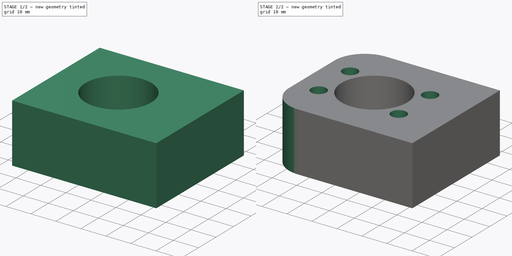
[diagram: build sequence overview — one tinted view per stage of 2, left to right]
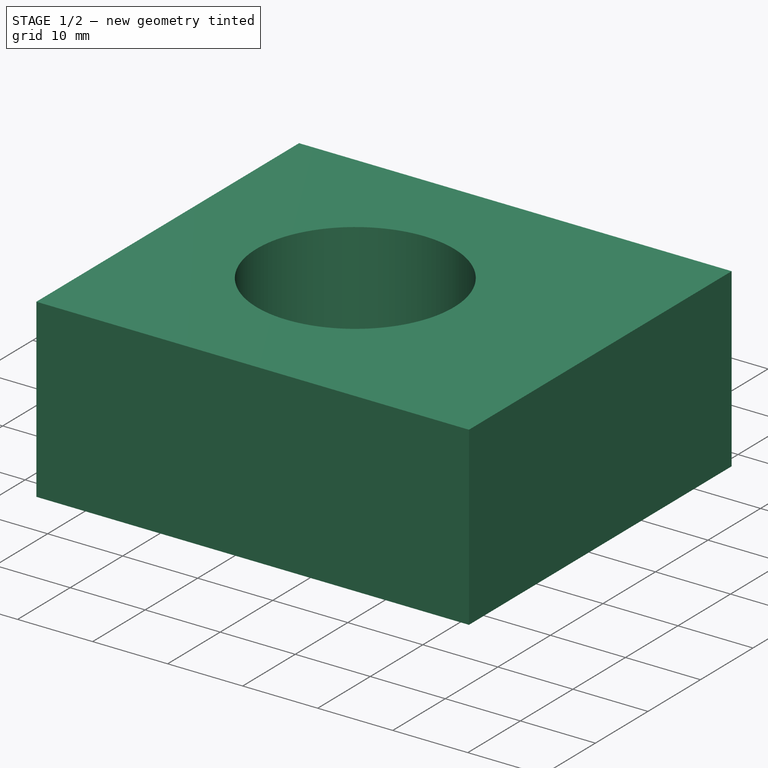
[diagram: stage 1 of 2 — iso view after this stage's code; geometry added in this stage tinted green]
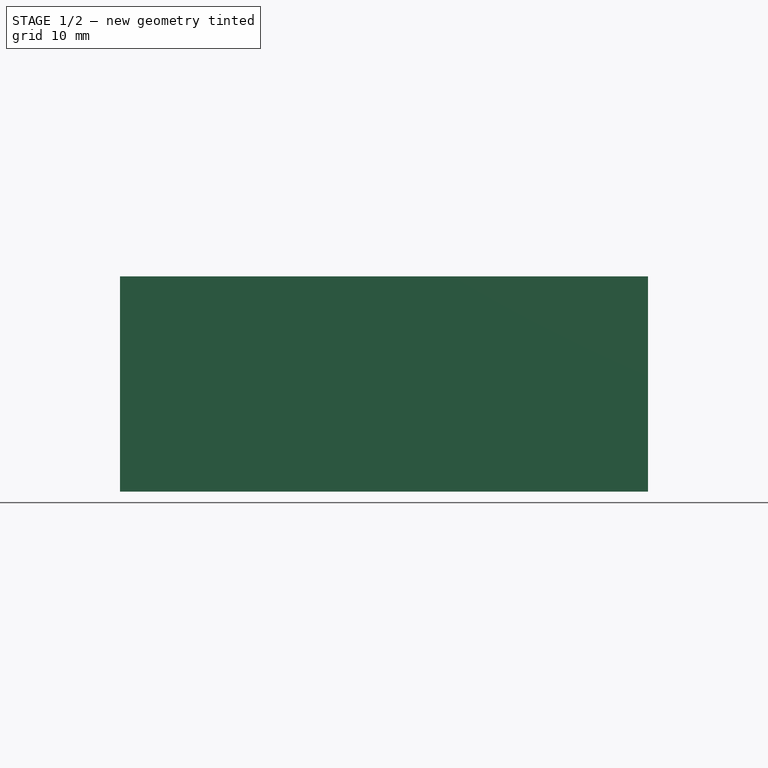
[diagram: stage 1 of 2 — front view after this stage's code; geometry added in this stage tinted green]
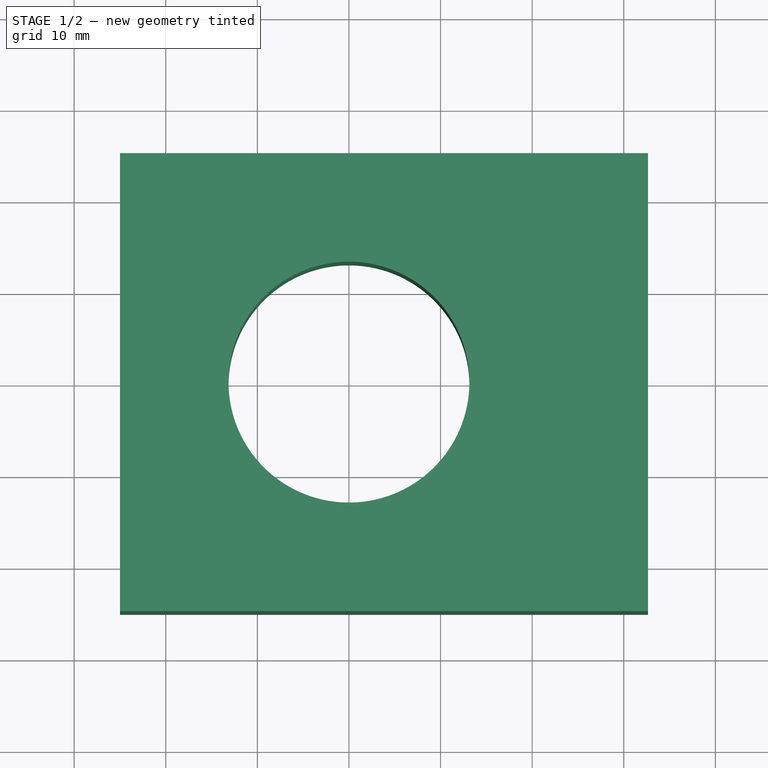
[diagram: stage 1 of 2 — top view after this stage's code; geometry added in this stage tinted green]
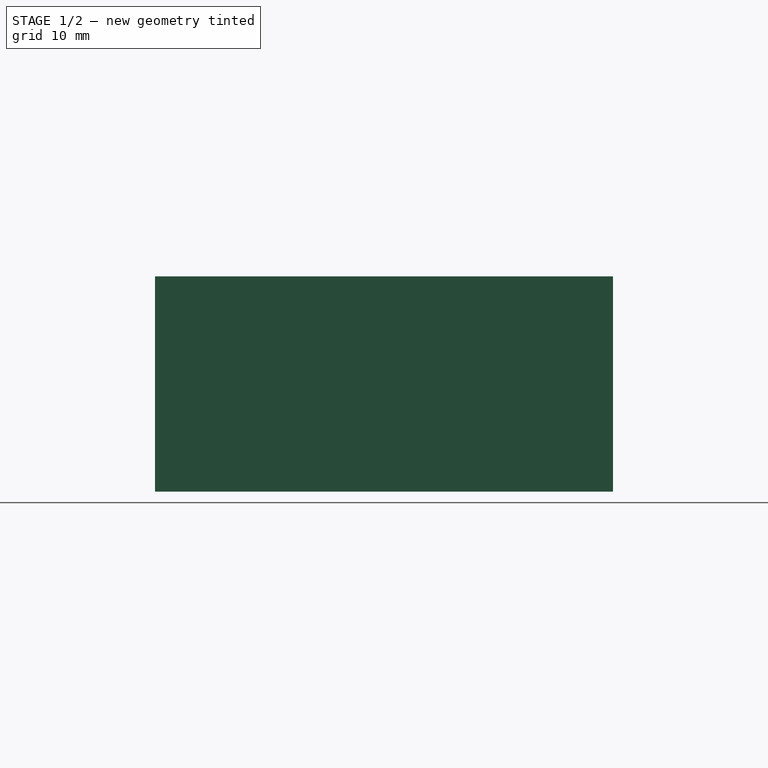
[diagram: stage 1 of 2 — right view after this stage's code; geometry added in this stage tinted green]
FCSTD DOCUMENT  (FreeCAD 0.20R29410 (Git))
Label: MainScrewLeadNutHolderCenter
License: All rights reserved
LicenseURL: http://en.wikipedia.org/wiki/All_rights_reserved
objects: Sketcher::SketchObject×4, PartDesign::Pad×1, PartDesign::Hole×1, PartDesign::Pocket×1, PartDesign::Fillet×1, PartDesign::Body×1
note: 13 computed .brp shape members not serialized (recipe doc carries the construction recipe); baked Part::Feature solids carry a one-line shape summary decoded from their .brp

FEATURE [Sketcher::SketchObject] Sketch008
  FullyConstrained = true
  MapMode = 5
  Support = -> [XY_Plane001]
  sketch-geometry (7):
    g0: LineSegment StartX=-25 StartY=25 StartZ=0 EndX=32.65 EndY=25 EndZ=0
    g1: LineSegment StartX=32.65 StartY=25 StartZ=0 EndX=32.65 EndY=-25 EndZ=0
    g2: LineSegment StartX=32.65 StartY=-25 StartZ=0 EndX=-25 EndY=-25 EndZ=0
    g3: LineSegment StartX=-25 StartY=-25 StartZ=0 EndX=-25 EndY=25 EndZ=0
    g4: LineSegment StartX=0 StartY=2e-16 StartZ=0 EndX=0 EndY=25 EndZ=0
    g5: LineSegment StartX=0 StartY=2e-16 StartZ=0 EndX=-25 EndY=2e-16 EndZ=0
    g6: LineSegment StartX=0 StartY=2e-16 StartZ=0 EndX=0 EndY=-25 EndZ=0
  constraints (21):
    c: Coincident(g0,g1)
    c: Coincident(g1,g2)
    c: Coincident(g2,g3)
    c: Coincident(g3,g0)
    c: Horizontal(g0)
    c: Horizontal(g2)
    c: Vertical(g1)
    c: Vertical(g3)
    c: DistanceX(g0,g0) = 57.65
    c: DistanceY(g3,g3) = 50
    c: Coincident(g4,g-1)
    c: PointOnObject(g4,g0)
    c: Vertical(g4)
    c: Coincident(g5,g4)
    c: PointOnObject(g5,g3)
    c: Horizontal(g5)
    c: Equal(g4,g5)
    c: Coincident(g6,g4)
    c: PointOnObject(g6,g2)
    c: Vertical(g6)
    c: Equal(g4,g6)
FEATURE [PartDesign::Pad] Pad
  Direction = (0,0,1)
  Length = 23.5
  Length2 = 10
  Profile = -> Sketch008
  ReferenceAxis = -> Sketch008 [N_Axis]
  Type = 0
FEATURE [Sketcher::SketchObject] Sketch
  FullyConstrained = true
  MapMode = 5
  Placement = pos=(0,0,23.5) rot=(0,0,1;0rad)
  Support = -> [Pad]
  sketch-geometry (1):
    g0: Circle CenterX=0 CenterY=0 CenterZ=0 NormalX=0 NormalY=0 NormalZ=1 AngleXU=0 Radius=13.15
  constraints (2):
    c: Coincident(g0,g-1)
    c: Diameter(g0) = 26.3
FEATURE [PartDesign::Hole] Hole
  BaseFeature = -> Pad
  CustomThreadClearance = 0
  Depth = 23.6
  DepthType = 0
  Diameter = 26.3
  DrillForDepth = false
  DrillPoint = 0
  DrillPointAngle = 118
  HoleCutCountersinkAngle = 90
  HoleCutCustomValues = false
  HoleCutDepth = 0
  HoleCutDiameter = 0
  HoleCutType = 0
  ModelThread = false
  Profile = -> Sketch
  Tapered = false
  TaperedAngle = 90
  ThreadClass = 0
  ThreadDepth = 23.6
  ThreadDepthType = 0
  ThreadDirection = 0
  ThreadFit = 0
  ThreadSize = 0
  ThreadType = 0
  Threaded = false
  UseCustomThreadClearance = false
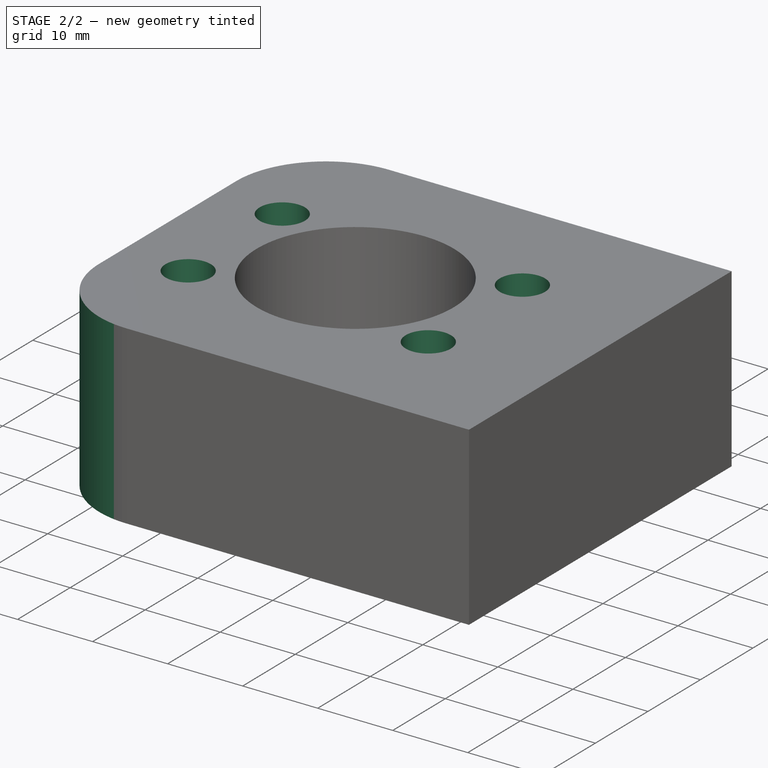
[diagram: stage 2 of 2 — iso view after this stage's code; geometry added in this stage tinted green]
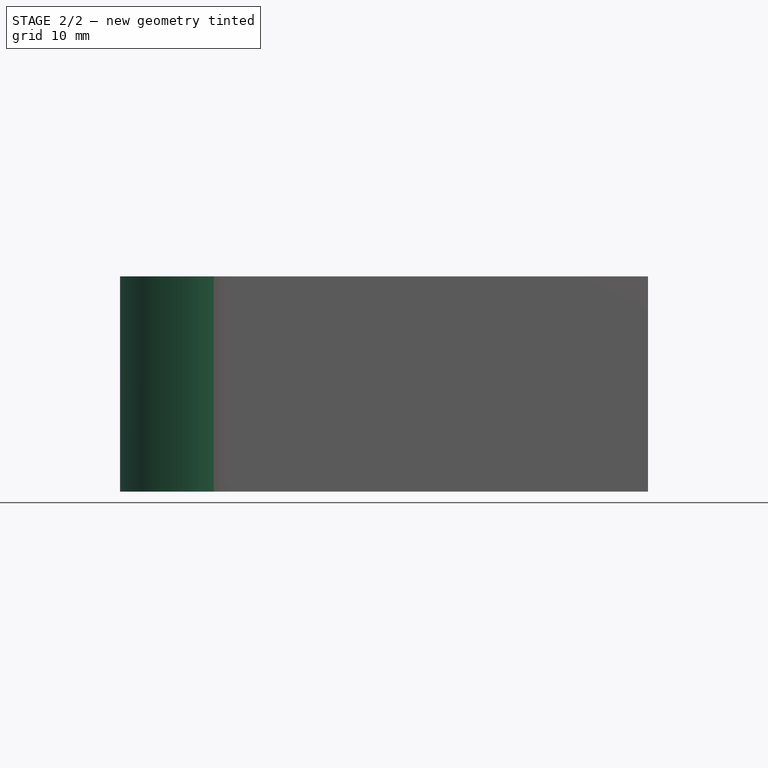
[diagram: stage 2 of 2 — front view after this stage's code; geometry added in this stage tinted green]
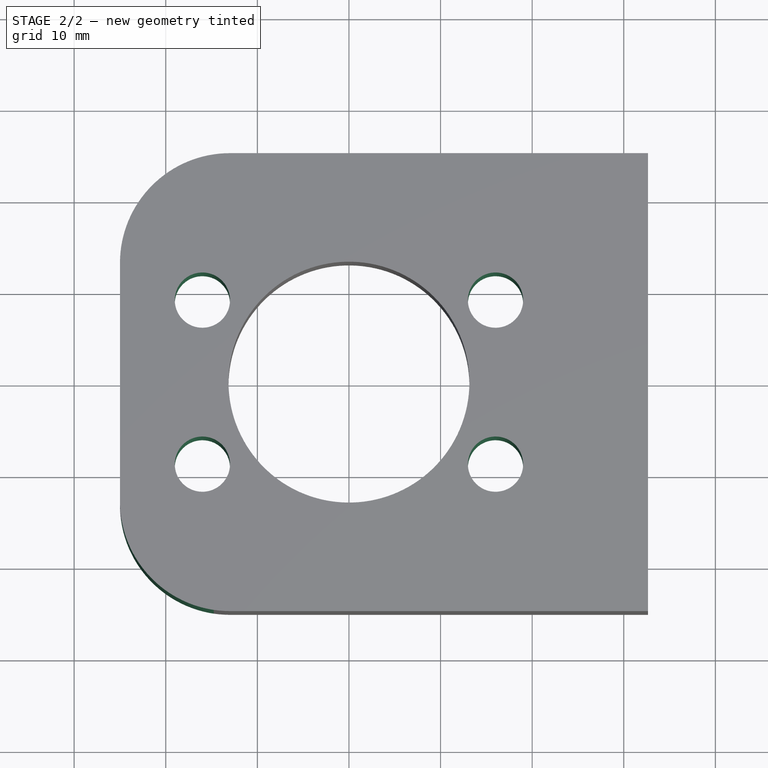
[diagram: stage 2 of 2 — top view after this stage's code; geometry added in this stage tinted green]
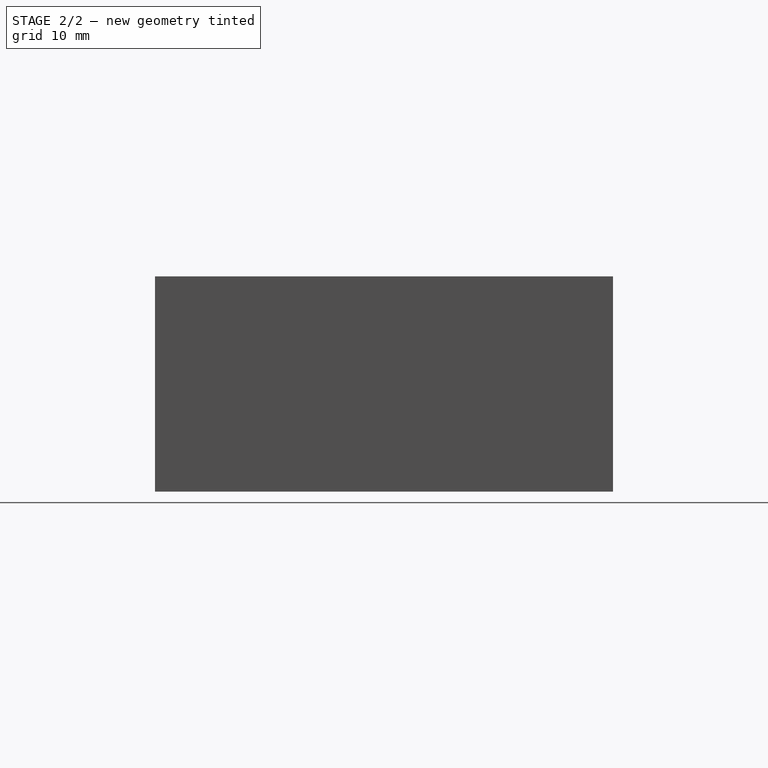
[diagram: stage 2 of 2 — right view after this stage's code; geometry added in this stage tinted green]
FEATURE [Sketcher::SketchObject] Sketch009
  ExternalGeometry = -> [Hole]
  FullyConstrained = false
  MapMode = 5
  Placement = pos=(0,0,23.5) rot=(0,0,1;0rad)
  Support = -> [Hole]
  sketch-geometry (16):
    g0: Circle CenterX=-16 CenterY=8.955 CenterZ=0 NormalX=0 NormalY=0 NormalZ=1 AngleXU=0 Radius=3.015
    g1: Circle CenterX=-16 CenterY=-8.955 CenterZ=0 NormalX=0 NormalY=0 NormalZ=1 AngleXU=0 Radius=3.015
    g2: Circle CenterX=16 CenterY=8.955 CenterZ=0 NormalX=0 NormalY=0 NormalZ=1 AngleXU=0 Radius=3.015
    g3: Circle CenterX=16 CenterY=-8.955 CenterZ=0 NormalX=0 NormalY=0 NormalZ=1 AngleXU=0 Radius=3.015
    g4: LineSegment StartX=-16 StartY=8.955 StartZ=0 EndX=16 EndY=8.955 EndZ=0
    g5: LineSegment StartX=16 StartY=8.955 StartZ=0 EndX=16 EndY=-8.955 EndZ=0
    g6: LineSegment StartX=16 StartY=-8.955 StartZ=0 EndX=-16 EndY=-8.955 EndZ=0
    g7: LineSegment StartX=-16 StartY=-8.955 StartZ=0 EndX=-16 EndY=8.955 EndZ=0
    g8: GeomPoint X=-16 Y=-6e-16 Z=0
    g9: GeomPoint X=-1.1e-15 Y=8.955 Z=0
    g10: LineSegment StartX=-1.1e-15 StartY=8.955 StartZ=0 EndX=0 EndY=0 EndZ=0
    g11: LineSegment StartX=0 StartY=0 StartZ=0 EndX=-16 EndY=-6e-16 EndZ=0
    g12: Circle CenterX=-25 CenterY=15.985 CenterZ=0 NormalX=0 NormalY=0 NormalZ=1 AngleXU=0 Radius=3.015
    g13: LineSegment StartX=-25 StartY=19 StartZ=0 EndX=-25 EndY=25 EndZ=0
    g14: GeomPoint X=-25 Y=12.97 Z=0
    g15: LineSegment StartX=-16 StartY=8.955 StartZ=0 EndX=-16 EndY=11.97 EndZ=0
  constraints (36):
    c: Symmetric(g3,g0,g-4)
    c: Symmetric(g1,g2,g-4)
    c: Coincident(g4,g5)
    c: Coincident(g5,g6)
    c: Coincident(g6,g7)
    c: Coincident(g7,g4)
    c: Horizontal(g4)
    c: Horizontal(g6)
    c: Vertical(g5)
    c: Vertical(g7)
    c: Coincident(g4,g0)
    c: Coincident(g5,g3)
    c: Coincident(g4,g2)
    c: Symmetric(g0,g1,g8)
    c: Symmetric(g0,g2,g9)
    c: Coincident(g10,g9)
    c: Coincident(g10,g-4)
    c: Coincident(g11,g10)
    c: Coincident(g11,g8)
    c: Equal(g0,g2)
    c: Equal(g2,g3)
    c: Equal(g3,g1)
    c: Diameter(g2) = 6.03
    c: PointOnObject(g12,g-5)
    c: Equal(g0,g12)
    c: Diameter(g0) = 6.03
    c: PointOnObject(g13,g12)
    c: Coincident(g13,g-5)
    c: Vertical(g13)
    c: PointOnObject(g14,g12)
    c: Coincident(g15,g0)
    c: PointOnObject(g15,g0)
    c: Vertical(g15)
    c: DistanceY(g15,g14) = 1
    c: DistanceY(g13,g13) = 6
    c: DistanceX(g13,g0) = 9
FEATURE [Sketcher::SketchObject] Sketch010
  ExternalGeometry = -> [Hole]
  FullyConstrained = true
  MapMode = 5
  Placement = pos=(-25,0,0) rot=(0.57735,-0.57735,-0.57735;2.0944rad)
  Support = -> [Hole]
  constraints (1):
    c: DistanceY(g-3,g-3) = 23.5
FEATURE [PartDesign::Pocket] Pocket
  BaseFeature = -> Hole
  Direction = (0,0,-1)
  Length = 27
  Length2 = 5
  Profile = -> Sketch009
  ReferenceAxis = -> Sketch009 [N_Axis]
  Type = 1
FEATURE [PartDesign::Fillet] Fillet
  Base = -> Pocket [Edge1,Edge5]
  BaseFeature = -> Pocket
  Radius = 12
  SupportTransform = false
  UseAllEdges = false
FEATURE [PartDesign::Body] Body001
  Group = -> [Sketch008,Pad,Sketch,Hole,Sketch009,Sketch010,Pocket,Fillet]
  Origin = -> Origin001
  Tip = -> Fillet
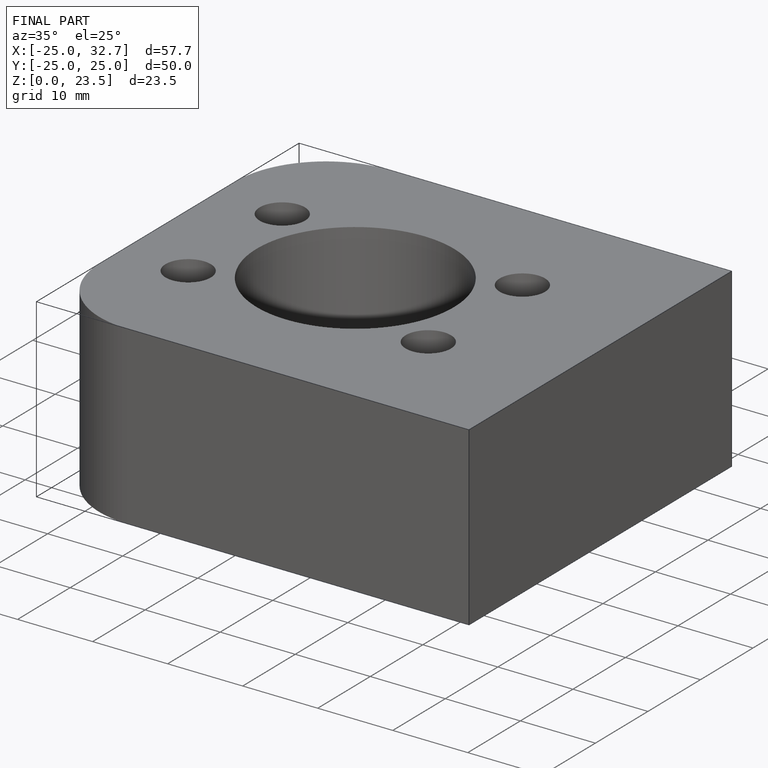
[diagram: finished part — iso view with bounding-box wireframe]
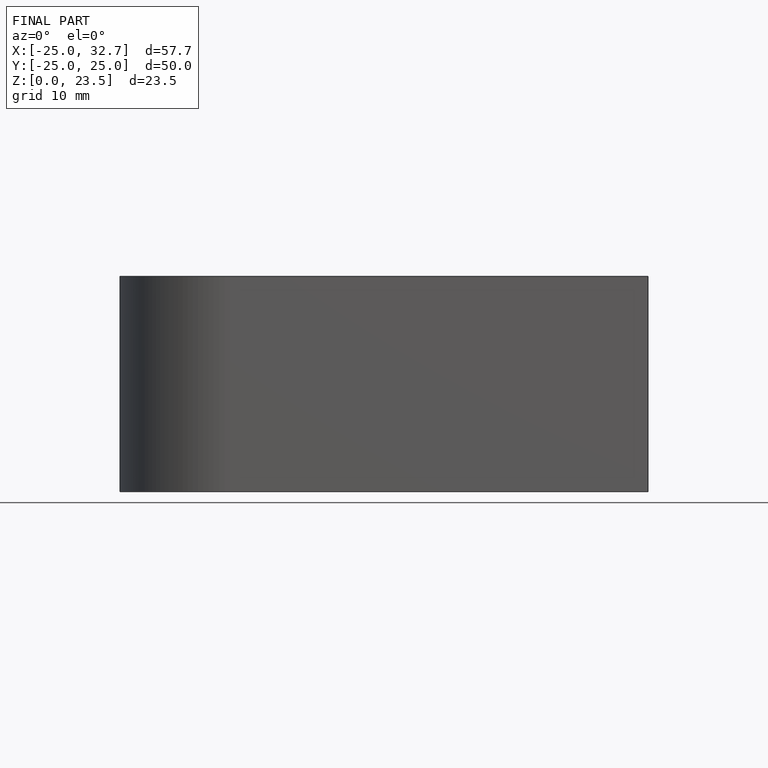
[diagram: finished part — front view with bounding-box wireframe]
